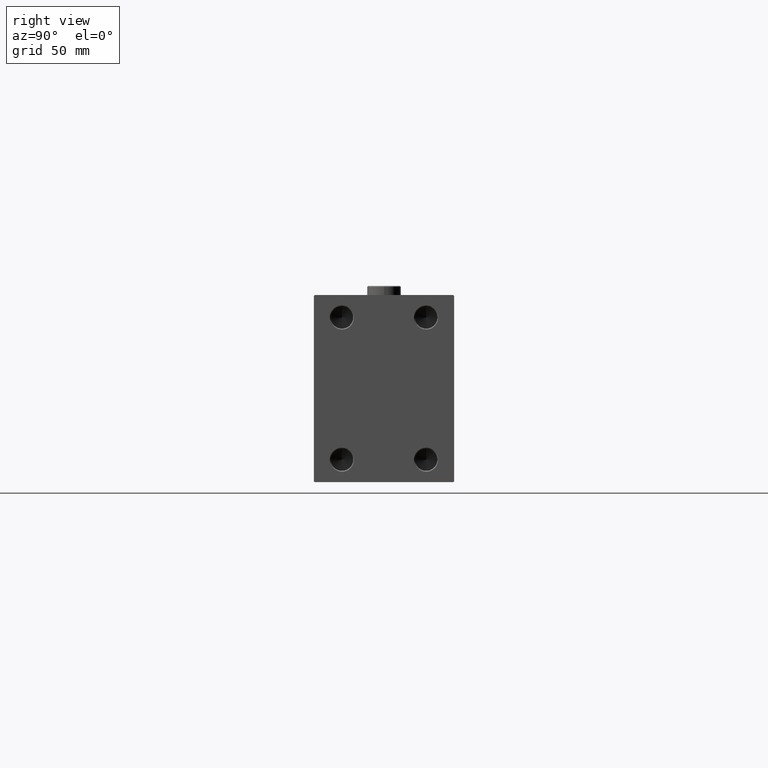
[diagram: clean part render]
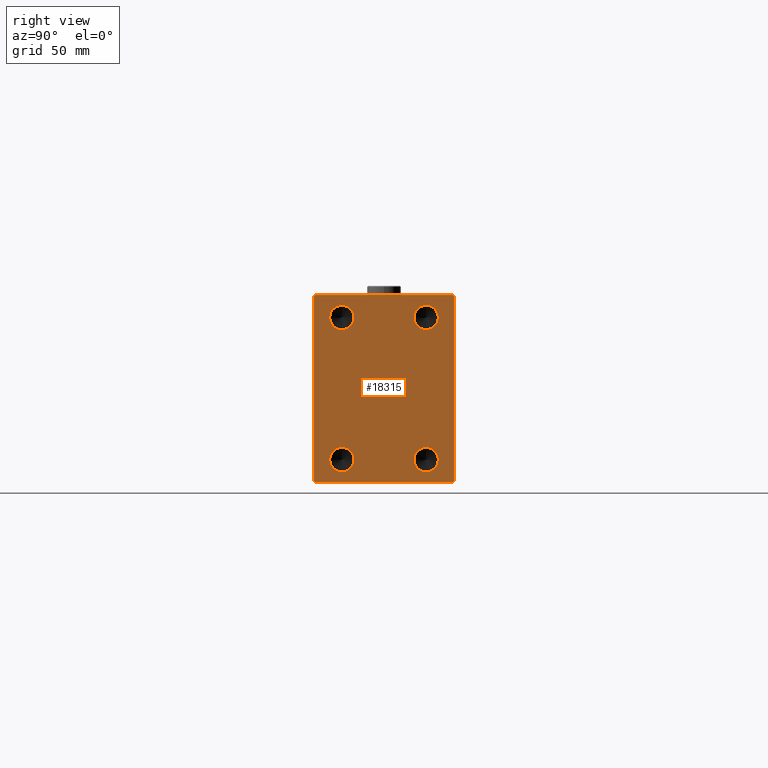
[diagram: same view with one face highlighted and labeled with its STEP entity id]
A machine part, right view. The second image highlights one B-rep face of the part: STEP entity #18315.
In plain terms, the highlighted planar face has unit normal (1, 0, 0).
Its self-contained STEP definition (entity closure, byte-faithful):
#61 = ORIENTED_EDGE ( 'NONE', *, *, #6133, .F. ) ;
#179 = CARTESIAN_POINT ( 'NONE',  ( 273.0000000000000000, 0.000000000000000000, 0.000000000000000000 ) ) ;
#489 = DIRECTION ( 'NONE',  ( 0.000000000000000000, 0.000000000000000000, -1.000000000000000000 ) ) ;
#632 = LINE ( 'NONE', #30557, #5023 ) ;
#686 = CARTESIAN_POINT ( 'NONE',  ( 273.0000000000000000, 22.50000000000000000, -38.00000000000000711 ) ) ;
#708 = DIRECTION ( 'NONE',  ( 1.000000000000000000, -0.000000000000000000, -0.000000000000000000 ) ) ;
#936 = AXIS2_PLACEMENT_3D ( 'NONE', #41409, #37730, #4110 ) ;
#944 = VECTOR ( 'NONE', #9376, 1000.000000000000000 ) ;
#985 = AXIS2_PLACEMENT_3D ( 'NONE', #686, #38966, #15926 ) ;
#1050 = CARTESIAN_POINT ( 'NONE',  ( 273.0000000000000000, 22.50000000000000000, 44.49999999999991473 ) ) ;
#1277 = CARTESIAN_POINT ( 'NONE',  ( 273.0000000000000000, -22.50000000000000000, 37.99999999999999289 ) ) ;
#1454 = VERTEX_POINT ( 'NONE', #1050 ) ;
#1638 = VERTEX_POINT ( 'NONE', #10835 ) ;
#2031 = CARTESIAN_POINT ( 'NONE',  ( 273.0000000000000000, -37.50000000000000000, -50.00000000000000000 ) ) ;
#2222 = DIRECTION ( 'NONE',  ( 1.000000000000000000, -0.000000000000000000, -0.000000000000000000 ) ) ;
#2297 = VERTEX_POINT ( 'NONE', #28028 ) ;
#2494 = CIRCLE ( 'NONE', #16587, 6.499999999999922728 ) ;
#2685 = VECTOR ( 'NONE', #35096, 1000.000000000000000 ) ;
#2769 = DIRECTION ( 'NONE',  ( 0.000000000000000000, 0.000000000000000000, -1.000000000000000000 ) ) ;
#3713 = CARTESIAN_POINT ( 'NONE',  ( 273.0000000000000000, -37.00000000000004974, 49.99999999999998579 ) ) ;
#4110 = DIRECTION ( 'NONE',  ( 0.000000000000000000, 0.000000000000000000, -1.000000000000000000 ) ) ;
#4529 = EDGE_CURVE ( 'NONE', #34180, #6471, #47123, .T. ) ;
#5023 = VECTOR ( 'NONE', #23461, 1000.000000000000000 ) ;
#5462 = ORIENTED_EDGE ( 'NONE', *, *, #14935, .F. ) ;
#5975 = CARTESIAN_POINT ( 'NONE',  ( 273.0000000000000000, 37.49999999999999289, 49.50000000000000000 ) ) ;
#6133 = EDGE_CURVE ( 'NONE', #1454, #16385, #2494, .T. ) ;
#6365 = CARTESIAN_POINT ( 'NONE',  ( 273.0000000000000000, 43.50000000000130740, 43.49999999999828759 ) ) ;
#6471 = VERTEX_POINT ( 'NONE', #38659 ) ;
#6618 = LINE ( 'NONE', #6365, #7318 ) ;
#6911 = LINE ( 'NONE', #18201, #38844 ) ;
#7064 = FACE_BOUND ( 'NONE', #13618, .T. ) ;
#7318 = VECTOR ( 'NONE', #29658, 1000.000000000000000 ) ;
#7544 = EDGE_CURVE ( 'NONE', #11248, #23157, #20417, .T. ) ;
#7558 = FACE_BOUND ( 'NONE', #27503, .T. ) ;
#7790 = FACE_OUTER_BOUND ( 'NONE', #47545, .T. ) ;
#8339 = ORIENTED_EDGE ( 'NONE', *, *, #23758, .F. ) ;
#9376 = DIRECTION ( 'NONE',  ( 0.000000000000000000, -1.000000000000000000, -2.775557561562891844E-16 ) ) ;
#9827 = CARTESIAN_POINT ( 'NONE',  ( 273.0000000000000000, -22.50000000000000000, 44.49999999999991473 ) ) ;
#10345 = CIRCLE ( 'NONE', #936, 6.499999999999922728 ) ;
#10531 = CARTESIAN_POINT ( 'NONE',  ( 273.0000000000000000, 37.50000000000000711, -49.50000000000005684 ) ) ;
#10835 = CARTESIAN_POINT ( 'NONE',  ( 273.0000000000000000, -22.50000000000000000, -44.50000000000004263 ) ) ;
#11186 = CIRCLE ( 'NONE', #38610, 6.500000000000005329 ) ;
#11248 = VERTEX_POINT ( 'NONE', #22029 ) ;
#11853 = ORIENTED_EDGE ( 'NONE', *, *, #39871, .T. ) ;
#12481 = ORIENTED_EDGE ( 'NONE', *, *, #24132, .T. ) ;
#13505 = EDGE_CURVE ( 'NONE', #6471, #34180, #35256, .T. ) ;
#13618 = EDGE_LOOP ( 'NONE', ( #41894, #29096 ) ) ;
#13704 = LINE ( 'NONE', #28644, #38649 ) ;
#14076 = CARTESIAN_POINT ( 'NONE',  ( 273.0000000000000000, 22.50000000000000000, 37.99999999999999289 ) ) ;
#14117 = CARTESIAN_POINT ( 'NONE',  ( 273.0000000000000000, 22.50000000000000000, -44.50000000000004263 ) ) ;
#14199 = ORIENTED_EDGE ( 'NONE', *, *, #33267, .T. ) ;
#14523 = DIRECTION ( 'NONE',  ( 0.000000000000000000, 0.000000000000000000, -1.000000000000000000 ) ) ;
#14930 = AXIS2_PLACEMENT_3D ( 'NONE', #1277, #27517, #38829 ) ;
#14935 = EDGE_CURVE ( 'NONE', #34504, #25051, #15736, .T. ) ;
#15464 = CARTESIAN_POINT ( 'NONE',  ( 273.0000000000000000, -37.00000000000002842, -50.00000000000000000 ) ) ;
#15690 = DIRECTION ( 'NONE',  ( 0.000000000000000000, 0.000000000000000000, -1.000000000000000000 ) ) ;
#15697 = VERTEX_POINT ( 'NONE', #38414 ) ;
#15736 = CIRCLE ( 'NONE', #14930, 6.499999999999922728 ) ;
#15854 = AXIS2_PLACEMENT_3D ( 'NONE', #179, #30116, #45103 ) ;
#15926 = DIRECTION ( 'NONE',  ( 0.000000000000000000, 0.000000000000000000, -1.000000000000000000 ) ) ;
#16385 = VERTEX_POINT ( 'NONE', #39250 ) ;
#16557 = EDGE_LOOP ( 'NONE', ( #23802, #5462 ) ) ;
#16587 = AXIS2_PLACEMENT_3D ( 'NONE', #14076, #36388, #2769 ) ;
#17012 = DIRECTION ( 'NONE',  ( 0.000000000000000000, 1.000000000000000000, 0.000000000000000000 ) ) ;
#18201 = CARTESIAN_POINT ( 'NONE',  ( 273.0000000000000000, -37.50000000000000000, 49.99999999999998579 ) ) ;
#18266 = CARTESIAN_POINT ( 'NONE',  ( 273.0000000000000000, -22.50000000000000000, -31.49999999999997158 ) ) ;
#18315 = ADVANCED_FACE ( 'NONE', ( #7558, #40683, #33784, #7064, #7790 ), #44616, .T. ) ;
#18321 = EDGE_CURVE ( 'NONE', #16385, #1454, #10345, .T. ) ;
#18372 = VERTEX_POINT ( 'NONE', #42146 ) ;
#18986 = CARTESIAN_POINT ( 'NONE',  ( 273.0000000000000000, -22.50000000000000000, -38.00000000000000711 ) ) ;
#19617 = ORIENTED_EDGE ( 'NONE', *, *, #44311, .T. ) ;
#19623 = VERTEX_POINT ( 'NONE', #18266 ) ;
#19657 = LINE ( 'NONE', #34613, #2685 ) ;
#19870 = CARTESIAN_POINT ( 'NONE',  ( 273.0000000000000000, 22.50000000000000000, -38.00000000000000711 ) ) ;
#20035 = CIRCLE ( 'NONE', #30980, 6.500000000000005329 ) ;
#20376 = AXIS2_PLACEMENT_3D ( 'NONE', #19870, #23320, #489 ) ;
#20417 = LINE ( 'NONE', #35378, #944 ) ;
#20903 = CIRCLE ( 'NONE', #27169, 6.499999999999922728 ) ;
#22029 = CARTESIAN_POINT ( 'NONE',  ( 273.0000000000000000, 37.00000000000002132, 50.00000000000000711 ) ) ;
#22161 = ORIENTED_EDGE ( 'NONE', *, *, #18321, .F. ) ;
#22590 = EDGE_LOOP ( 'NONE', ( #8339, #28120 ) ) ;
#23157 = VERTEX_POINT ( 'NONE', #3713 ) ;
#23320 = DIRECTION ( 'NONE',  ( 1.000000000000000000, -0.000000000000000000, -0.000000000000000000 ) ) ;
#23461 = DIRECTION ( 'NONE',  ( 0.000000000000000000, -0.7071067811865524577, -0.7071067811865426878 ) ) ;
#23758 = EDGE_CURVE ( 'NONE', #19623, #1638, #11186, .T. ) ;
#23802 = ORIENTED_EDGE ( 'NONE', *, *, #36643, .F. ) ;
#24132 = EDGE_CURVE ( 'NONE', #44149, #11248, #6618, .T. ) ;
#24480 = EDGE_CURVE ( 'NONE', #18372, #28181, #13704, .T. ) ;
#24614 = LINE ( 'NONE', #2031, #41830 ) ;
#25051 = VERTEX_POINT ( 'NONE', #9827 ) ;
#27100 = LINE ( 'NONE', #34689, #47719 ) ;
#27169 = AXIS2_PLACEMENT_3D ( 'NONE', #27987, #2222, #46889 ) ;
#27309 = DIRECTION ( 'NONE',  ( 1.000000000000000000, -0.000000000000000000, -0.000000000000000000 ) ) ;
#27503 = EDGE_LOOP ( 'NONE', ( #61, #22161 ) ) ;
#27517 = DIRECTION ( 'NONE',  ( 1.000000000000000000, -0.000000000000000000, -0.000000000000000000 ) ) ;
#27957 = ORIENTED_EDGE ( 'NONE', *, *, #38215, .T. ) ;
#27987 = CARTESIAN_POINT ( 'NONE',  ( 273.0000000000000000, -22.50000000000000000, 37.99999999999999289 ) ) ;
#28028 = CARTESIAN_POINT ( 'NONE',  ( 273.0000000000000000, -37.50000000000000000, 49.50000000000004263 ) ) ;
#28120 = ORIENTED_EDGE ( 'NONE', *, *, #47256, .F. ) ;
#28181 = VERTEX_POINT ( 'NONE', #10531 ) ;
#28644 = CARTESIAN_POINT ( 'NONE',  ( 273.0000000000000000, 43.50000000000029132, -43.49999999999968736 ) ) ;
#29096 = ORIENTED_EDGE ( 'NONE', *, *, #4529, .F. ) ;
#29658 = DIRECTION ( 'NONE',  ( -0.000000000000000000, -0.7071067811865230368, 0.7071067811865721087 ) ) ;
#30116 = DIRECTION ( 'NONE',  ( 1.000000000000000000, 0.000000000000000000, 0.000000000000000000 ) ) ;
#30557 = CARTESIAN_POINT ( 'NONE',  ( 273.0000000000000000, -43.49999999999975842, 43.50000000000036238 ) ) ;
#30980 = AXIS2_PLACEMENT_3D ( 'NONE', #34320, #708, #15690 ) ;
#33267 = EDGE_CURVE ( 'NONE', #2297, #15697, #6911, .T. ) ;
#33784 = FACE_BOUND ( 'NONE', #22590, .T. ) ;
#33937 = DIRECTION ( 'NONE',  ( 0.000000000000000000, 0.000000000000000000, -1.000000000000000000 ) ) ;
#34180 = VERTEX_POINT ( 'NONE', #14117 ) ;
#34320 = CARTESIAN_POINT ( 'NONE',  ( 273.0000000000000000, -22.50000000000000000, -38.00000000000000711 ) ) ;
#34445 = DIRECTION ( 'NONE',  ( -0.000000000000000000, 0.7071067811865279218, -0.7071067811865671127 ) ) ;
#34504 = VERTEX_POINT ( 'NONE', #37885 ) ;
#34613 = CARTESIAN_POINT ( 'NONE',  ( 273.0000000000000000, 37.50000000000000711, -50.00000000000000000 ) ) ;
#34689 = CARTESIAN_POINT ( 'NONE',  ( 273.0000000000000000, -43.50000000000103739, -43.49999999999862865 ) ) ;
#35096 = DIRECTION ( 'NONE',  ( 0.000000000000000000, -1.387778780781445676E-16, 1.000000000000000000 ) ) ;
#35256 = CIRCLE ( 'NONE', #20376, 6.500000000000005329 ) ;
#35378 = CARTESIAN_POINT ( 'NONE',  ( 273.0000000000000000, 37.49999999999999289, 50.00000000000000711 ) ) ;
#36388 = DIRECTION ( 'NONE',  ( 1.000000000000000000, -0.000000000000000000, -0.000000000000000000 ) ) ;
#36643 = EDGE_CURVE ( 'NONE', #25051, #34504, #20903, .T. ) ;
#37730 = DIRECTION ( 'NONE',  ( 1.000000000000000000, -0.000000000000000000, -0.000000000000000000 ) ) ;
#37885 = CARTESIAN_POINT ( 'NONE',  ( 273.0000000000000000, -22.50000000000000000, 31.50000000000007105 ) ) ;
#38215 = EDGE_CURVE ( 'NONE', #15697, #48009, #27100, .T. ) ;
#38414 = CARTESIAN_POINT ( 'NONE',  ( 273.0000000000000000, -37.50000000000000000, -49.49999999999997158 ) ) ;
#38610 = AXIS2_PLACEMENT_3D ( 'NONE', #18986, #27309, #33937 ) ;
#38649 = VECTOR ( 'NONE', #39700, 999.9999999999998863 ) ;
#38659 = CARTESIAN_POINT ( 'NONE',  ( 273.0000000000000000, 22.50000000000000000, -31.49999999999997158 ) ) ;
#38829 = DIRECTION ( 'NONE',  ( 0.000000000000000000, 0.000000000000000000, -1.000000000000000000 ) ) ;
#38844 = VECTOR ( 'NONE', #14523, 1000.000000000000000 ) ;
#38966 = DIRECTION ( 'NONE',  ( 1.000000000000000000, -0.000000000000000000, -0.000000000000000000 ) ) ;
#39250 = CARTESIAN_POINT ( 'NONE',  ( 273.0000000000000000, 22.50000000000000000, 31.50000000000007105 ) ) ;
#39700 = DIRECTION ( 'NONE',  ( -0.000000000000000000, 0.7071067811865425767, 0.7071067811865525687 ) ) ;
#39871 = EDGE_CURVE ( 'NONE', #23157, #2297, #632, .T. ) ;
#40683 = FACE_BOUND ( 'NONE', #16557, .T. ) ;
#41159 = ORIENTED_EDGE ( 'NONE', *, *, #43296, .T. ) ;
#41409 = CARTESIAN_POINT ( 'NONE',  ( 273.0000000000000000, 22.50000000000000000, 37.99999999999999289 ) ) ;
#41667 = ORIENTED_EDGE ( 'NONE', *, *, #7544, .T. ) ;
#41830 = VECTOR ( 'NONE', #17012, 1000.000000000000000 ) ;
#41894 = ORIENTED_EDGE ( 'NONE', *, *, #13505, .F. ) ;
#42146 = CARTESIAN_POINT ( 'NONE',  ( 273.0000000000000000, 37.00000000000007105, -50.00000000000000000 ) ) ;
#43296 = EDGE_CURVE ( 'NONE', #48009, #18372, #24614, .T. ) ;
#44013 = ORIENTED_EDGE ( 'NONE', *, *, #24480, .T. ) ;
#44149 = VERTEX_POINT ( 'NONE', #5975 ) ;
#44311 = EDGE_CURVE ( 'NONE', #28181, #44149, #19657, .T. ) ;
#44616 = PLANE ( 'NONE',  #15854 ) ;
#45103 = DIRECTION ( 'NONE',  ( 0.000000000000000000, 0.000000000000000000, -1.000000000000000000 ) ) ;
#46889 = DIRECTION ( 'NONE',  ( 0.000000000000000000, 0.000000000000000000, -1.000000000000000000 ) ) ;
#47123 = CIRCLE ( 'NONE', #985, 6.500000000000005329 ) ;
#47256 = EDGE_CURVE ( 'NONE', #1638, #19623, #20035, .T. ) ;
#47545 = EDGE_LOOP ( 'NONE', ( #41667, #11853, #14199, #27957, #41159, #44013, #19617, #12481 ) ) ;
#47719 = VECTOR ( 'NONE', #34445, 1000.000000000000000 ) ;
#48009 = VERTEX_POINT ( 'NONE', #15464 ) ;